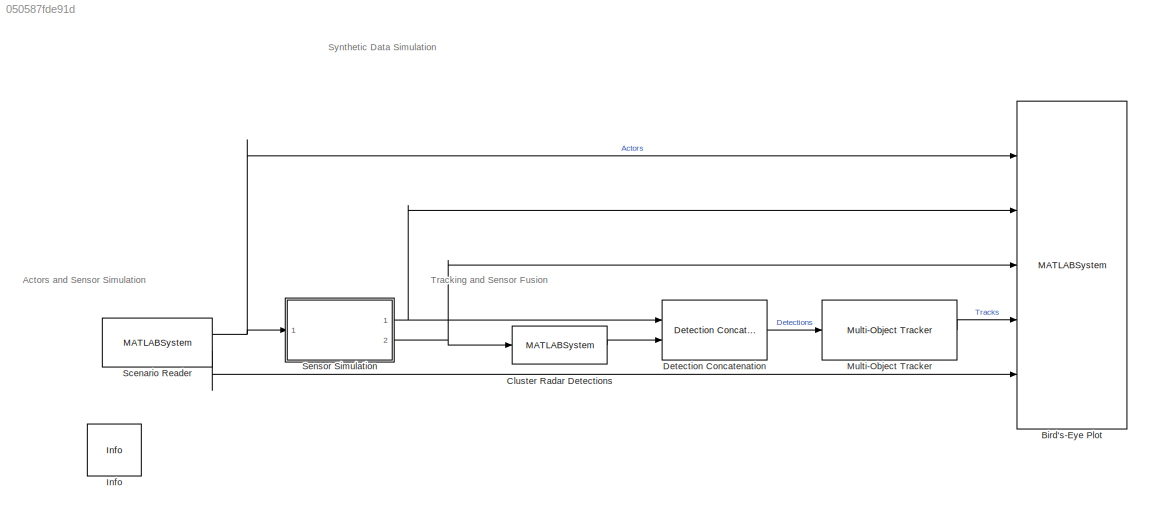
MODEL slx_050587fde91d
KIND model
CONFIG AbsTol = auto
CONFIG EnableMultiTasking = off
CONFIG FixedStep = 0.1
CONFIG MaxStep = auto
CONFIG MinStep = auto
CONFIG RelTol = 1e-3
CONFIG SampleTimeConstraint = Unconstrained
CONFIG Solver = FixedStepDiscrete
CONFIG SolverName = FixedStepDiscrete
CONFIG StartTime = 0.0
CONFIG StopTime = 14.34
BLOCK [MATLABSystem] Bird's-Eye Plot
  HasActors = on
  HasMIO = off
  HasRadar = on
  HasRoads = on
  HasTracks = on
  HasVision = on
  MaskDisplay = disp(['Bird''s-Eye' char(10) 'Plot']);\nport_label('input',1,'Actors');\nport_label('input',2,'Vision');\nport_label('input',3,'Radar');\nport_label('input',4,'Tracks');\nport_label('input',5,'Roads');
  MaskType = helperBirdsEyePlot
  ModelCloseFcn = helperCloseAll(gcb)
  Ports = [5]
  System = helperBirdsEyePlot
  TrackPositionSelector = [ 1, 0, 0, 0, 0, 0; 0, 0, 1, 0, 0, 0 ]
  TrackVelocitySelector = [ 0, 1, 0, 0, 0, 0; 0, 0, 0, 1, 0, 0 ]
  XLim = [ -60, 60 ]
  YLim = [ -50, 50 ]
BLOCK [MATLABSystem] Cluster Radar Detections
  BusNameSource = Auto
  ClusterSize = 5
  MaskDisplay = disp(['Detection' char(10) 'Clustering']);\nport_label('input',1,'In');\nport_label('output',1,'Out');
  MaskType = helperClusterDetections
  Ports = [1, 1]
  SimulateUsing = Interpreted execution
  System = helperClusterDetections
BLOCK [Reference] Detection Concatenation  REF=drivinglib/Detection Concatenation
  Ports = [2, 1]
  SourceBlock = drivinglib/Detection Concatenation
  SourceProductName = Automated Driving System Toolbox
  SourceType = driving.internal.DetectionConcatenation
BLOCK [Reference] Info  REF=drivingmisc/Info
  Ports = []
  SourceBlock = drivingmisc/Info
  SourceProductBaseCode = VP
  SourceProductName = Computer Vision System Toolbox
  SourceType = Info
BLOCK [Reference] Multi-Object Tracker  REF=drivinglib/Multi-Object Tracker
  Ports = [1, 1]
  SourceBlock = drivinglib/Multi-Object Tracker
  SourceProductName = Automated Driving System Toolbox
  SourceType = multiObjectTracker
BLOCK [MATLABSystem] Scenario Reader
  BusNameSource = Auto
  EgoActorID = 1
  EgoActorSource = Auto
  MaskDisplay = disp(['Scenario' char(10) 'Reader']);\nport_label('output',1,'Actors');\nport_label('output',2,'Roads');
  MaskType = helperScenarioReader
  Ports = [0, 2]
  RoadBoundaries = on
  ScenarioFileName = openLoopSimulinkScenario
  SimulateUsing = Interpreted execution
  System = helperScenarioReader
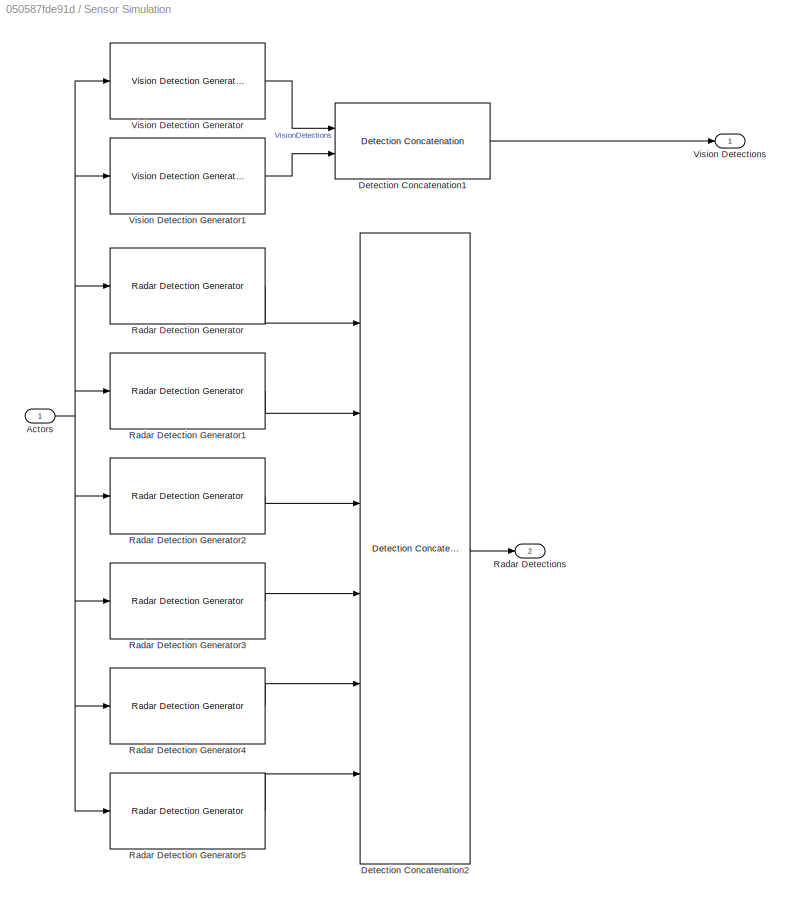
BLOCK [SubSystem] Sensor Simulation
  Ports = [1, 2]
  RequestExecContextInheritance = off
  Variant = off
BLOCK [Inport] Sensor Simulation/Actors
  IconDisplay = Port number
BLOCK [Reference] Sensor Simulation/Detection Concatenation1  REF=drivinglib/Detection Concatenation
  Ports = [2, 1]
  SourceBlock = drivinglib/Detection Concatenation
  SourceProductName = Automated Driving System Toolbox
  SourceType = driving.internal.DetectionConcatenation
BLOCK [Reference] Sensor Simulation/Detection Concatenation2  REF=drivinglib/Detection Concatenation
  Ports = [6, 1]
  SourceBlock = drivinglib/Detection Concatenation
  SourceProductName = Automated Driving System Toolbox
  SourceType = driving.internal.DetectionConcatenation
BLOCK [Reference] Sensor Simulation/Radar Detection Generator  REF=drivinglib/Radar Detection Generator
  Ports = [1, 1]
  SourceBlock = drivinglib/Radar Detection Generator
  SourceProductName = Automated Driving System Toolbox
  SourceType = radarDetectionGenerator
BLOCK [Reference] Sensor Simulation/Radar Detection Generator1  REF=drivinglib/Radar Detection Generator
  Ports = [1, 1]
  SourceBlock = drivinglib/Radar Detection Generator
  SourceProductName = Automated Driving System Toolbox
  SourceType = radarDetectionGenerator
BLOCK [Reference] Sensor Simulation/Radar Detection Generator2  REF=drivinglib/Radar Detection Generator
  Ports = [1, 1]
  SourceBlock = drivinglib/Radar Detection Generator
  SourceProductName = Automated Driving System Toolbox
  SourceType = radarDetectionGenerator
BLOCK [Reference] Sensor Simulation/Radar Detection Generator3  REF=drivinglib/Radar Detection Generator
  Ports = [1, 1]
  SourceBlock = drivinglib/Radar Detection Generator
  SourceProductName = Automated Driving System Toolbox
  SourceType = radarDetectionGenerator
BLOCK [Reference] Sensor Simulation/Radar Detection Generator4  REF=drivinglib/Radar Detection Generator
  Ports = [1, 1]
  SourceBlock = drivinglib/Radar Detection Generator
  SourceProductName = Automated Driving System Toolbox
  SourceType = radarDetectionGenerator
BLOCK [Reference] Sensor Simulation/Radar Detection Generator5  REF=drivinglib/Radar Detection Generator
  Ports = [1, 1]
  SourceBlock = drivinglib/Radar Detection Generator
  SourceProductName = Automated Driving System Toolbox
  SourceType = radarDetectionGenerator
BLOCK [Outport] Sensor Simulation/Radar Detections
  IconDisplay = Port number
  Port = 2
BLOCK [Reference] Sensor Simulation/Vision Detection Generator  REF=drivinglib/Vision Detection Generator
  Ports = [1, 1]
  SourceBlock = drivinglib/Vision Detection Generator
  SourceProductName = Automated Driving System Toolbox
  SourceType = visionDetectionGenerator
BLOCK [Reference] Sensor Simulation/Vision Detection Generator1  REF=drivinglib/Vision Detection Generator
  Ports = [1, 1]
  SourceBlock = drivinglib/Vision Detection Generator
  SourceProductName = Automated Driving System Toolbox
  SourceType = visionDetectionGenerator
BLOCK [Outport] Sensor Simulation/Vision Detections
  IconDisplay = Port number
ANNOTATION (root): Actors and Sensor Simulation
ANNOTATION (root): Synthetic Data Simulation
ANNOTATION (root): Tracking and Sensor Fusion
LINE Cluster Radar Detections:1 -> Detection Concatenation:2
LINE Detection Concatenation:1 -> Multi-Object Tracker:1
LINE Multi-Object Tracker:1 -> Bird's-Eye Plot:4
NET Scenario Reader:1 -> Bird's-Eye Plot:1, Sensor Simulation:1
LINE Scenario Reader:2 -> Bird's-Eye Plot:5
NET Sensor Simulation/Actors:1 -> Sensor Simulation/Radar Detection Generator1:1, Sensor Simulation/Radar Detection Generator2:1, Sensor Simulation/Radar Detection Generator3:1, Sensor Simulation/Radar Detection Generator4:1, Sensor Simulation/Radar Detection Generator5:1, Sensor Simulation/Radar Detection Generator:1, Sensor Simulation/Vision Detection Generator1:1, Sensor Simulation/Vision Detection Generator:1
LINE Sensor Simulation/Detection Concatenation1:1 -> Sensor Simulation/Vision Detections:1
LINE Sensor Simulation/Detection Concatenation2:1 -> Sensor Simulation/Radar Detections:1
LINE Sensor Simulation/Radar Detection Generator1:1 -> Sensor Simulation/Detection Concatenation2:2
LINE Sensor Simulation/Radar Detection Generator2:1 -> Sensor Simulation/Detection Concatenation2:3
LINE Sensor Simulation/Radar Detection Generator3:1 -> Sensor Simulation/Detection Concatenation2:4
LINE Sensor Simulation/Radar Detection Generator4:1 -> Sensor Simulation/Detection Concatenation2:5
LINE Sensor Simulation/Radar Detection Generator5:1 -> Sensor Simulation/Detection Concatenation2:6
LINE Sensor Simulation/Radar Detection Generator:1 -> Sensor Simulation/Detection Concatenation2:1
LINE Sensor Simulation/Vision Detection Generator1:1 -> Sensor Simulation/Detection Concatenation1:2
LINE Sensor Simulation/Vision Detection Generator:1 -> Sensor Simulation/Detection Concatenation1:1
NET Sensor Simulation:1 -> Bird's-Eye Plot:2, Detection Concatenation:1
NET Sensor Simulation:2 -> Bird's-Eye Plot:3, Cluster Radar Detections:1
note: NET lines group one-source signal fan-out (src -> all destinations, sorted); 1:1 wires keep LINE
